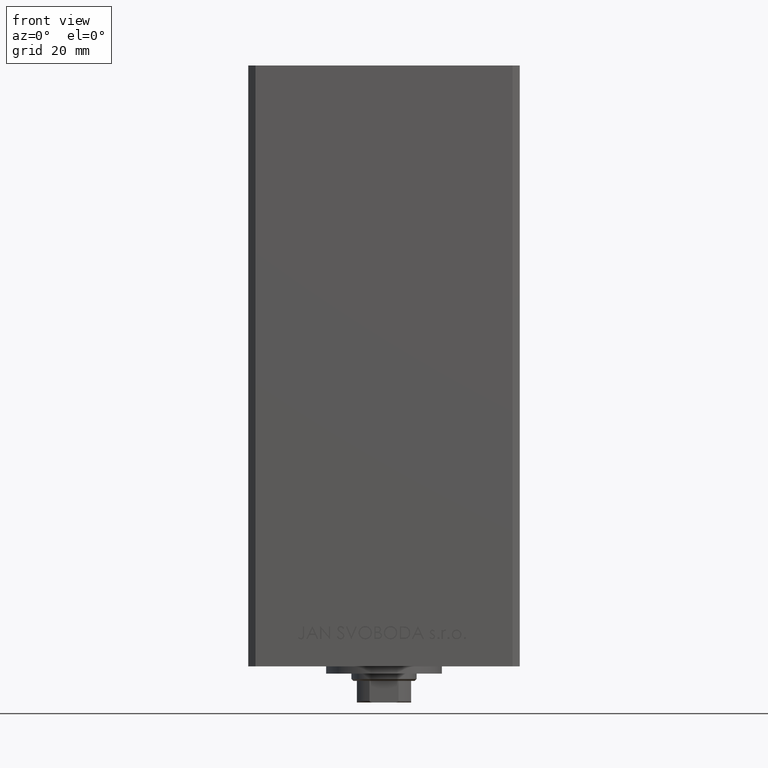
[diagram: clean part render]
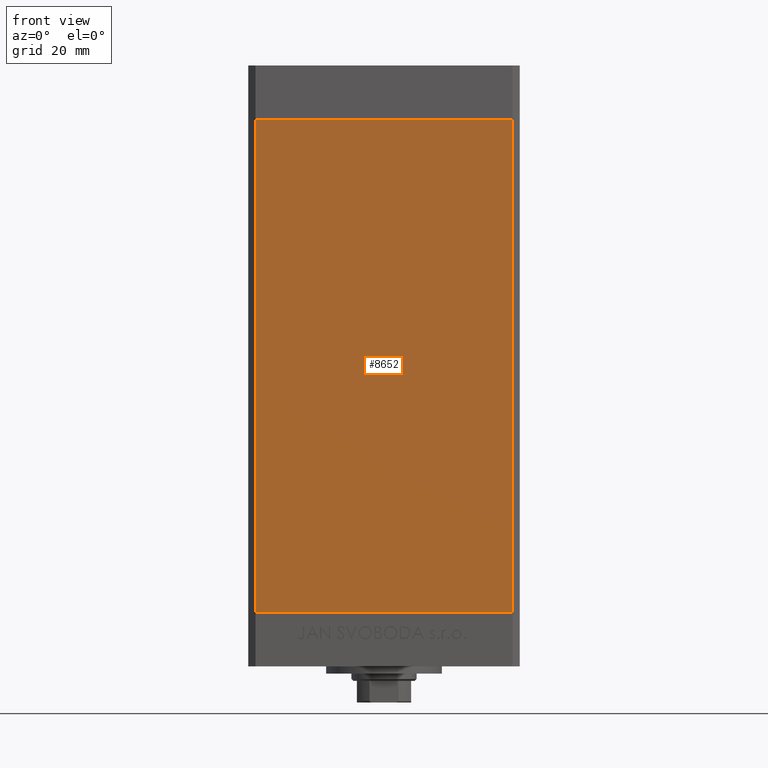
[diagram: same view with one face highlighted and labeled with its STEP entity id]
A machine part, front view. The second image highlights one B-rep face of the part: STEP entity #8652.
In plain terms, the highlighted planar face has unit normal (0, 1, 0).
Its self-contained STEP definition (entity closure, byte-faithful):
#644 = EDGE_CURVE ( 'NONE', #45316, #23729, #22663, .T. ) ;
#2829 = ORIENTED_EDGE ( 'NONE', *, *, #12408, .F. ) ;
#3808 = CARTESIAN_POINT ( 'NONE',  ( -35.49999999999999289, -32.50000000000000000, 0.000000000000000000 ) ) ;
#6224 = DIRECTION ( 'NONE',  ( 0.000000000000000000, 1.000000000000000000, 0.000000000000000000 ) ) ;
#6775 = CARTESIAN_POINT ( 'NONE',  ( 35.49999999999999289, -32.50000000000000000, 136.0000000000000000 ) ) ;
#7857 = VECTOR ( 'NONE', #45338, 1000.000000000000000 ) ;
#8652 = ADVANCED_FACE ( 'NONE', ( #13687 ), #17910, .F. ) ;
#8746 = LINE ( 'NONE', #20448, #21794 ) ;
#10507 = LINE ( 'NONE', #6775, #27803 ) ;
#12408 = EDGE_CURVE ( 'NONE', #23729, #24659, #10507, .T. ) ;
#13687 = FACE_OUTER_BOUND ( 'NONE', #16203, .T. ) ;
#13865 = EDGE_CURVE ( 'NONE', #45316, #34765, #19114, .T. ) ;
#16203 = EDGE_LOOP ( 'NONE', ( #25658, #2829, #42994, #31103 ) ) ;
#16700 = DIRECTION ( 'NONE',  ( 1.000000000000000000, 0.000000000000000000, 0.000000000000000000 ) ) ;
#16815 = CARTESIAN_POINT ( 'NONE',  ( -35.49999999999999289, -32.50000000000000000, 136.0000000000000000 ) ) ;
#17910 = PLANE ( 'NONE',  #27671 ) ;
#18431 = CARTESIAN_POINT ( 'NONE',  ( -35.49999999999999289, -32.50000000000000000, 136.0000000000000000 ) ) ;
#18632 = DIRECTION ( 'NONE',  ( -0.000000000000000000, -0.000000000000000000, -1.000000000000000000 ) ) ;
#19114 = LINE ( 'NONE', #31076, #21515 ) ;
#20448 = CARTESIAN_POINT ( 'NONE',  ( -35.49999999999999289, -32.50000000000000000, 0.000000000000000000 ) ) ;
#21515 = VECTOR ( 'NONE', #18632, 1000.000000000000000 ) ;
#21794 = VECTOR ( 'NONE', #16700, 1000.000000000000000 ) ;
#21952 = DIRECTION ( 'NONE',  ( -0.000000000000000000, -0.000000000000000000, -1.000000000000000000 ) ) ;
#22663 = LINE ( 'NONE', #18431, #7857 ) ;
#23729 = VERTEX_POINT ( 'NONE', #44079 ) ;
#24659 = VERTEX_POINT ( 'NONE', #34772 ) ;
#25658 = ORIENTED_EDGE ( 'NONE', *, *, #26146, .T. ) ;
#26146 = EDGE_CURVE ( 'NONE', #34765, #24659, #8746, .T. ) ;
#27671 = AXIS2_PLACEMENT_3D ( 'NONE', #44087, #6224, #29136 ) ;
#27803 = VECTOR ( 'NONE', #21952, 1000.000000000000000 ) ;
#29136 = DIRECTION ( 'NONE',  ( 0.000000000000000000, -0.000000000000000000, 1.000000000000000000 ) ) ;
#31076 = CARTESIAN_POINT ( 'NONE',  ( -35.49999999999999289, -32.50000000000000000, 136.0000000000000000 ) ) ;
#31103 = ORIENTED_EDGE ( 'NONE', *, *, #13865, .T. ) ;
#34765 = VERTEX_POINT ( 'NONE', #3808 ) ;
#34772 = CARTESIAN_POINT ( 'NONE',  ( 35.49999999999999289, -32.50000000000000000, 0.000000000000000000 ) ) ;
#42994 = ORIENTED_EDGE ( 'NONE', *, *, #644, .F. ) ;
#44079 = CARTESIAN_POINT ( 'NONE',  ( 35.49999999999999289, -32.50000000000000000, 136.0000000000000000 ) ) ;
#44087 = CARTESIAN_POINT ( 'NONE',  ( -35.49999999999999289, -32.50000000000000000, 136.0000000000000000 ) ) ;
#45316 = VERTEX_POINT ( 'NONE', #16815 ) ;
#45338 = DIRECTION ( 'NONE',  ( 1.000000000000000000, 0.000000000000000000, 0.000000000000000000 ) ) ;